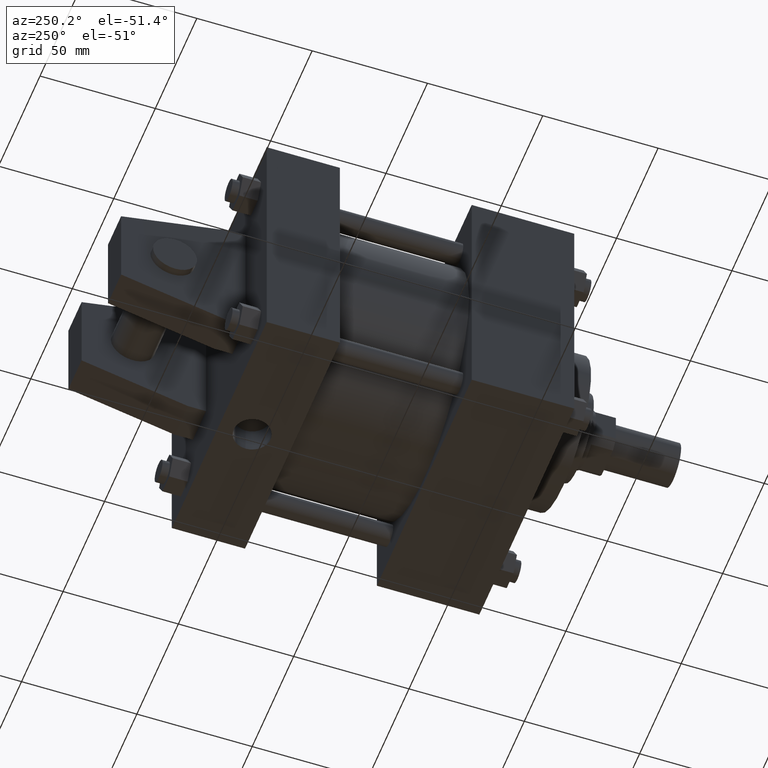
[diagram: clean part render]
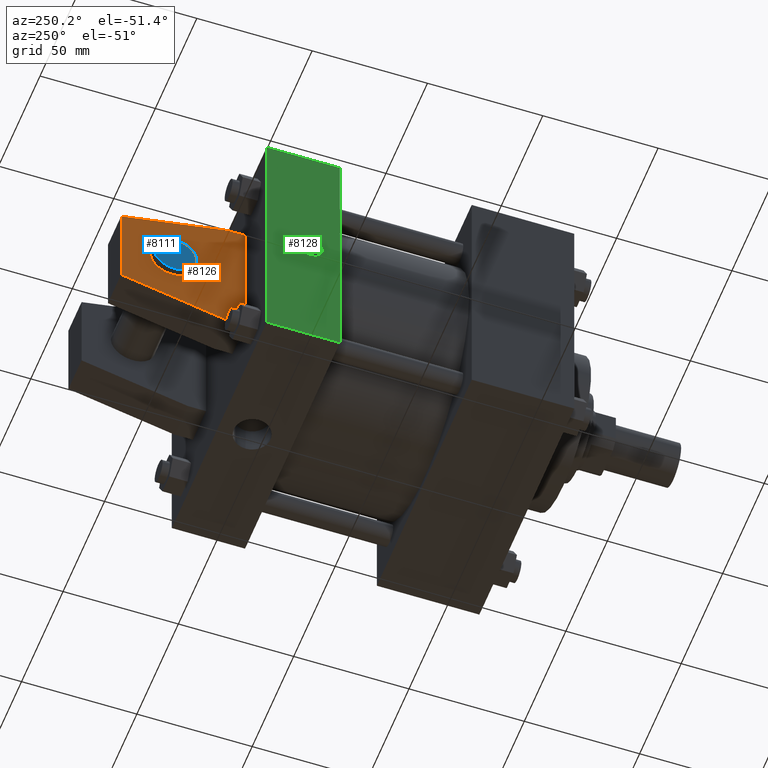
[diagram: same view with three faces highlighted in distinct colors, each labeled with its STEP entity id]
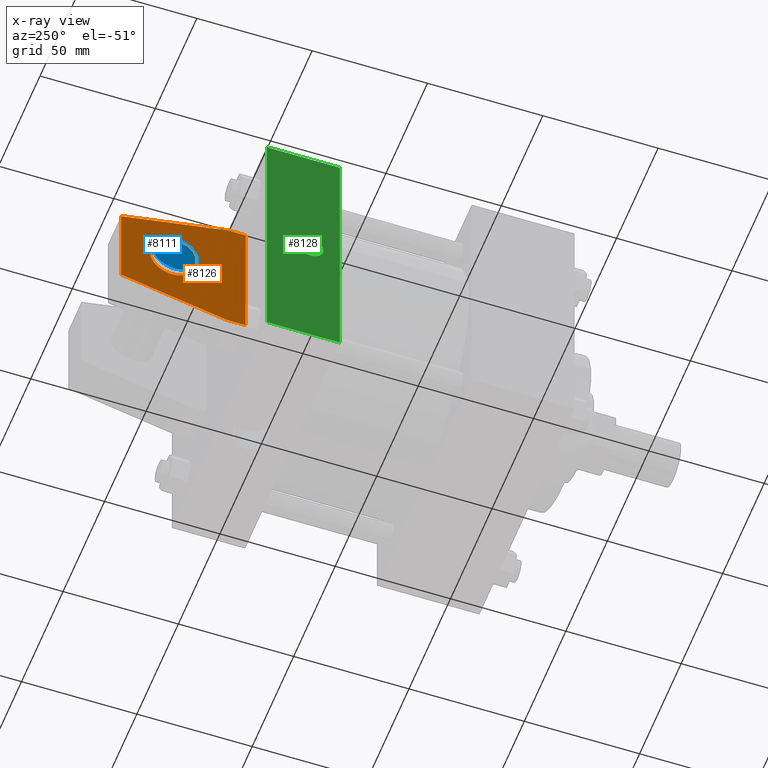
[diagram: x-ray of the same camera — body ghosted, the three highlighted faces saturated]
A machine part, auxiliary view with three faces highlighted in distinct colors.
The next image is the same camera in x-ray (body ghosted, the three faces saturated) — at least one of them is partly hidden behind the body in this view.
Their STEP definitions:

[orange] entity #8126 — the highlighted planar face has unit normal (-1, 0, 0).
#4408=EDGE_CURVE('',#4414,#4414,#4409,.T.);
#4409=CIRCLE('',#4410,9.525000000E+000);
#4410=AXIS2_PLACEMENT_3D('',#4411,#4412,#4413);
#4411=CARTESIAN_POINT('',(-3.175000000E+001,2.000250000E+002,0.000000000E+000));
#4412=DIRECTION('',(-1.0E+000,0.0E+000,0.0E+000));
#4413=DIRECTION('',(0.0E+000,1.0E+000,0.0E+000));
#4414=VERTEX_POINT('',#4415);
#4415=CARTESIAN_POINT('',(-3.175000000E+001,2.095500000E+002,0.000000000E+000));
#4770=FACE_OUTER_BOUND('',#4772,.T.);
#4771=FACE_BOUND('',#4773,.T.);
#4772=EDGE_LOOP('',(#4774));
#4773=EDGE_LOOP('',(#4775,#4776,#4777,#4778,#4779,#4780));
#4774=ORIENTED_EDGE('',*,*,#4408,.F.);
#4775=ORIENTED_EDGE('',*,*,#4781,.T.);
#4776=ORIENTED_EDGE('',*,*,#4790,.T.);
#4777=ORIENTED_EDGE('',*,*,#4797,.T.);
#4778=ORIENTED_EDGE('',*,*,#4804,.T.);
#4779=ORIENTED_EDGE('',*,*,#4811,.T.);
#4780=ORIENTED_EDGE('',*,*,#4818,.T.);
#4781=EDGE_CURVE('',#4786,#4787,#4782,.T.);
#4782=LINE('',#4783,#4784);
#4783=CARTESIAN_POINT('',(-3.175000000E+001,1.682750000E+002,-2.936875000E+001));
#4784=VECTOR('',#4785,1.0E+000);
#4785=DIRECTION('',(0.0E+000,-1.0E+000,0.0E+000));
#4786=VERTEX_POINT('',#4788);
#4787=VERTEX_POINT('',#4789);
#4788=CARTESIAN_POINT('',(-3.175000000E+001,1.762125000E+002,-2.936875000E+001));
#4789=CARTESIAN_POINT('',(-3.175000000E+001,1.682750000E+002,-2.936875000E+001));
#4790=EDGE_CURVE('',#4787,#4795,#4791,.T.);
#4791=LINE('',#4792,#4793);
#4792=CARTESIAN_POINT('',(-3.175000000E+001,1.682750000E+002,-2.936875000E+001));
#4793=VECTOR('',#4794,1.0E+000);
#4794=DIRECTION('',(0.0E+000,0.0E+000,1.0E+000));
#4795=VERTEX_POINT('',#4796);
#4796=CARTESIAN_POINT('',(-3.175000000E+001,1.682750000E+002,2.936875000E+001));
#4797=EDGE_CURVE('',#4795,#4802,#4798,.T.);
#4798=LINE('',#4799,#4800);
#4799=CARTESIAN_POINT('',(-3.175000000E+001,1.762125000E+002,2.936875000E+001));
#4800=VECTOR('',#4801,1.0E+000);
#4801=DIRECTION('',(0.0E+000,1.0E+000,0.0E+000));
#4802=VERTEX_POINT('',#4803);
#4803=CARTESIAN_POINT('',(-3.175000000E+001,1.762125000E+002,2.936875000E+001));
#4804=EDGE_CURVE('',#4802,#4809,#4805,.T.);
#4805=LINE('',#4806,#4807);
#4806=CARTESIAN_POINT('',(-3.175000000E+001,2.222500000E+002,1.905000000E+001));
#4807=VECTOR('',#4808,1.0E+000);
#4808=DIRECTION('',(0.0E+000,9.757895770E-001,-2.187114569E-001));
#4809=VERTEX_POINT('',#4810);
#4810=CARTESIAN_POINT('',(-3.175000000E+001,2.222500000E+002,1.905000000E+001));
#4811=EDGE_CURVE('',#4809,#4816,#4812,.T.);
#4812=LINE('',#4813,#4814);
#4813=CARTESIAN_POINT('',(-3.175000000E+001,2.222500000E+002,-1.905000000E+001));
#4814=VECTOR('',#4815,1.0E+000);
#4815=DIRECTION('',(0.0E+000,0.0E+000,-1.0E+000));
#4816=VERTEX_POINT('',#4817);
#4817=CARTESIAN_POINT('',(-3.175000000E+001,2.222500000E+002,-1.905000000E+001));
#4818=EDGE_CURVE('',#4816,#4786,#4819,.T.);
#4819=LINE('',#4820,#4821);
#4820=CARTESIAN_POINT('',(-3.175000000E+001,1.762125000E+002,-2.936875000E+001));
#4821=VECTOR('',#4822,1.0E+000);
#4822=DIRECTION('',(0.0E+000,-9.757895770E-001,-2.187114569E-001));
#4823=PLANE('',#4824);
#4824=AXIS2_PLACEMENT_3D('',#4825,#4826,#4827);
#4825=CARTESIAN_POINT('',(-3.175000000E+001,1.682750000E+002,-2.936875000E+001));
#4826=DIRECTION('',(-1.0E+000,0.0E+000,0.0E+000));
#4827=DIRECTION('',(0.0E+000,1.0E+000,0.0E+000));
#8126=ADVANCED_FACE('',(#4770,#4771),#4823,.T.);

[blue] entity #8111 — the highlighted planar face has unit normal (1, 0, 0).
#4386=FACE_OUTER_BOUND('',#4387,.T.);
#4387=EDGE_LOOP('',(#4388));
#4388=ORIENTED_EDGE('',*,*,#4389,.F.);
#4389=EDGE_CURVE('',#4395,#4395,#4390,.T.);
#4390=CIRCLE('',#4391,9.525000000E+000);
#4391=AXIS2_PLACEMENT_3D('',#4392,#4393,#4394);
#4392=CARTESIAN_POINT('',(-3.492500000E+001,2.000250000E+002,0.000000000E+000));
#4393=DIRECTION('',(1.0E+000,0.0E+000,0.0E+000));
#4394=DIRECTION('',(0.0E+000,0.0E+000,-1.0E+000));
#4395=VERTEX_POINT('',#4396);
#4396=CARTESIAN_POINT('',(-3.492500000E+001,2.000250000E+002,-9.525000000E+000));
#4397=PLANE('',#4398);
#4398=AXIS2_PLACEMENT_3D('',#4399,#4400,#4401);
#4399=CARTESIAN_POINT('',(-3.492500000E+001,2.000250000E+002,0.000000000E+000));
#4400=DIRECTION('',(1.0E+000,0.0E+000,0.0E+000));
#4401=DIRECTION('',(0.0E+000,-1.0E+000,0.0E+000));
#8111=ADVANCED_FACE('',(#4386),#4397,.F.);

[green] entity #8128 — the highlighted planar face has unit normal (-1, 0, 0).
#4621=EDGE_CURVE('',#4627,#4627,#4622,.T.);
#4622=CIRCLE('',#4623,5.556250000E+000);
#4623=AXIS2_PLACEMENT_3D('',#4624,#4625,#4626);
#4624=CARTESIAN_POINT('',(-5.715000000E+001,1.492250000E+002,0.000000000E+000));
#4625=DIRECTION('',(1.0E+000,0.0E+000,0.0E+000));
#4626=DIRECTION('',(0.0E+000,0.0E+000,1.0E+000));
#4627=VERTEX_POINT('',#4628);
#4628=CARTESIAN_POINT('',(-5.715000000E+001,1.492250000E+002,5.556250000E+000));
#4842=VERTEX_POINT('',#4844);
#4844=CARTESIAN_POINT('',(-5.715000000E+001,1.365250000E+002,-5.715000000E+001));
#4846=EDGE_CURVE('',#4851,#4842,#4847,.T.);
#4847=LINE('',#4848,#4849);
#4848=CARTESIAN_POINT('',(-5.715000000E+001,1.682750000E+002,-5.715000000E+001));
#4849=VECTOR('',#4850,1.0E+000);
#4850=DIRECTION('',(0.0E+000,-1.0E+000,0.0E+000));
#4851=VERTEX_POINT('',#4852);
#4852=CARTESIAN_POINT('',(-5.715000000E+001,1.682750000E+002,-5.715000000E+001));
#4870=FACE_OUTER_BOUND('',#4872,.T.);
#4871=FACE_BOUND('',#4873,.T.);
#4872=EDGE_LOOP('',(#4874));
#4873=EDGE_LOOP('',(#4875,#4876,#4877,#4878));
#4874=ORIENTED_EDGE('',*,*,#4621,.T.);
#4875=ORIENTED_EDGE('',*,*,#4879,.F.);
#4876=ORIENTED_EDGE('',*,*,#4886,.F.);
#4877=ORIENTED_EDGE('',*,*,#4893,.T.);
#4878=ORIENTED_EDGE('',*,*,#4846,.T.);
#4879=EDGE_CURVE('',#4884,#4842,#4880,.T.);
#4880=LINE('',#4881,#4882);
#4881=CARTESIAN_POINT('',(-5.715000000E+001,1.365250000E+002,5.715000000E+001));
#4882=VECTOR('',#4883,1.0E+000);
#4883=DIRECTION('',(0.0E+000,0.0E+000,-1.0E+000));
#4884=VERTEX_POINT('',#4885);
#4885=CARTESIAN_POINT('',(-5.715000000E+001,1.365250000E+002,5.715000000E+001));
#4886=EDGE_CURVE('',#4891,#4884,#4887,.T.);
#4887=LINE('',#4888,#4889);
#4888=CARTESIAN_POINT('',(-5.715000000E+001,1.682750000E+002,5.715000000E+001));
#4889=VECTOR('',#4890,1.0E+000);
#4890=DIRECTION('',(0.0E+000,-1.0E+000,0.0E+000));
#4891=VERTEX_POINT('',#4892);
#4892=CARTESIAN_POINT('',(-5.715000000E+001,1.682750000E+002,5.715000000E+001));
#4893=EDGE_CURVE('',#4891,#4851,#4894,.T.);
#4894=LINE('',#4895,#4896);
#4895=CARTESIAN_POINT('',(-5.715000000E+001,1.682750000E+002,5.715000000E+001));
#4896=VECTOR('',#4897,1.0E+000);
#4897=DIRECTION('',(0.0E+000,0.0E+000,-1.0E+000));
#4898=PLANE('',#4899);
#4899=AXIS2_PLACEMENT_3D('',#4900,#4901,#4902);
#4900=CARTESIAN_POINT('',(-5.715000000E+001,1.682750000E+002,5.715000000E+001));
#4901=DIRECTION('',(-1.0E+000,0.0E+000,0.0E+000));
#4902=DIRECTION('',(0.0E+000,0.0E+000,1.0E+000));
#8128=ADVANCED_FACE('',(#4870,#4871),#4898,.T.);